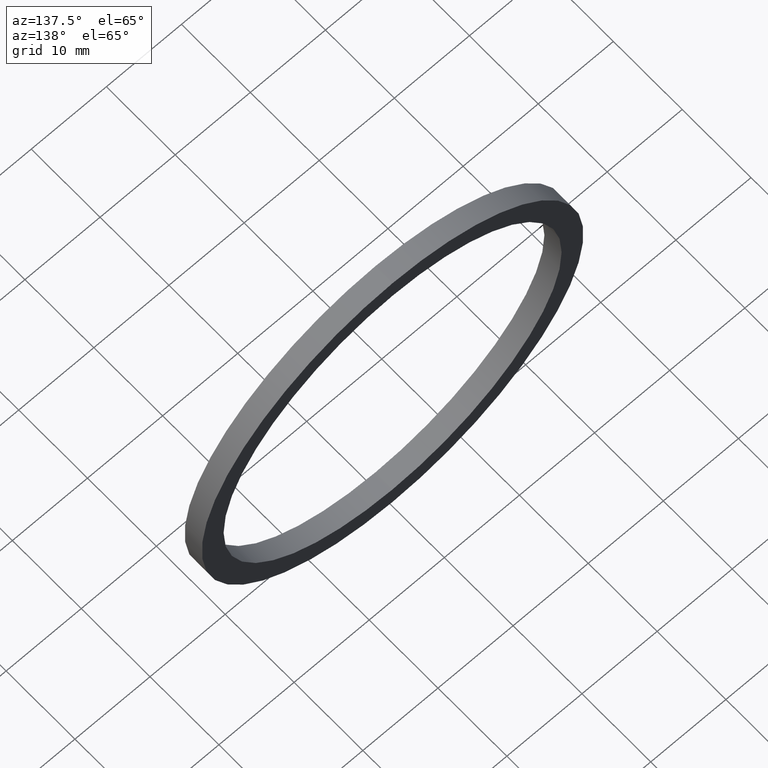
[diagram: clean part render]
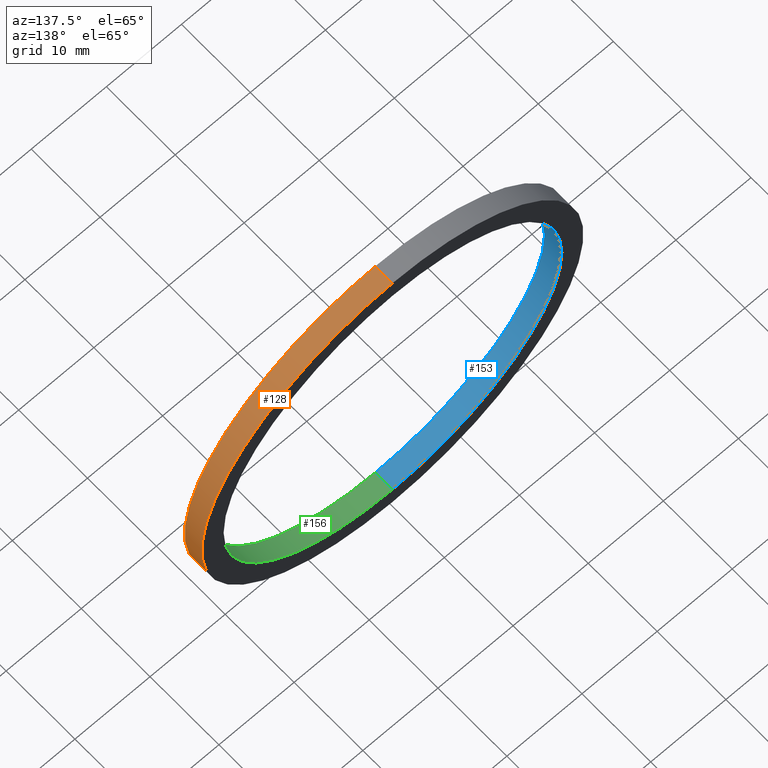
[diagram: same view with three faces highlighted in distinct colors, each labeled with its STEP entity id]
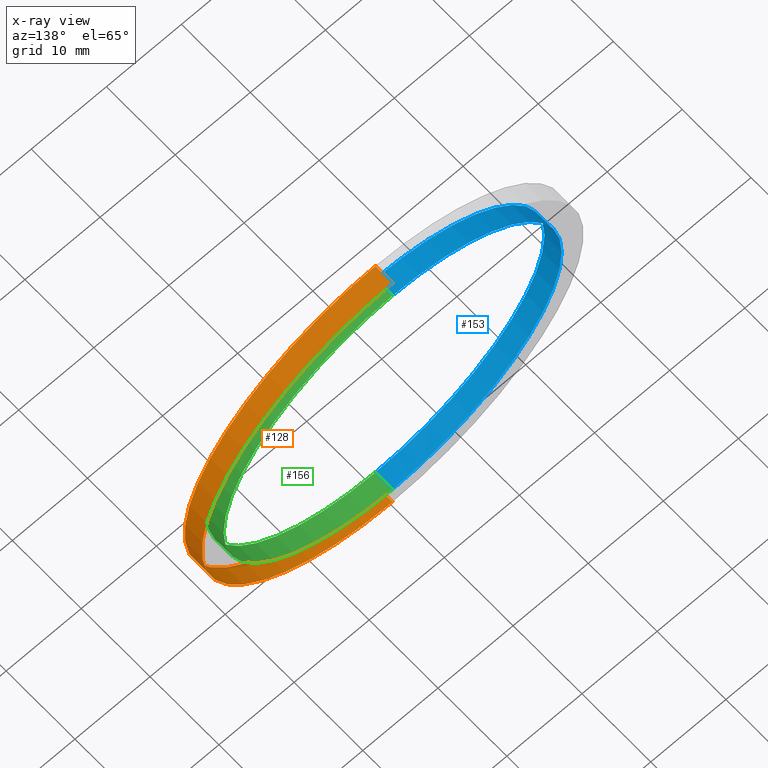
[diagram: x-ray of the same camera — body ghosted, the three highlighted faces saturated]
A machine part, auxiliary view with three faces highlighted in distinct colors.
The next image is the same camera in x-ray (body ghosted, the three faces saturated) — at least one of them is partly hidden behind the body in this view.
Their STEP definitions:

[orange] entity #128 — the highlighted cylindrical surface (partial cylindrical patch) has radius 25.4 mm, axis along (-0, 1, -0).
#4 = CIRCLE ( 'NONE', #59, 25.40000000000000900 ) ;
#14 = DIRECTION ( 'NONE',  ( 0.0000000000000000000, 0.0000000000000000000, 1.000000000000000000 ) ) ;
#19 = VECTOR ( 'NONE', #201, 1000.000000000000000 ) ;
#20 = VERTEX_POINT ( 'NONE', #79 ) ;
#25 = ORIENTED_EDGE ( 'NONE', *, *, #133, .T. ) ;
#26 = CARTESIAN_POINT ( 'NONE',  ( 0.0000000000000000000, 0.0000000000000000000, 0.0000000000000000000 ) ) ;
#39 = VERTEX_POINT ( 'NONE', #158 ) ;
#40 = EDGE_CURVE ( 'NONE', #20, #39, #123, .T. ) ;
#44 = LINE ( 'NONE', #85, #131 ) ;
#50 = ORIENTED_EDGE ( 'NONE', *, *, #160, .F. ) ;
#59 = AXIS2_PLACEMENT_3D ( 'NONE', #87, #102, #14 ) ;
#69 = DIRECTION ( 'NONE',  ( 0.0000000000000000000, 0.0000000000000000000, 1.000000000000000000 ) ) ;
#76 = FACE_OUTER_BOUND ( 'NONE', #149, .T. ) ;
#79 = CARTESIAN_POINT ( 'NONE',  ( 0.0000000000000000000, 0.0000000000000000000, 25.40000000000000900 ) ) ;
#81 = CARTESIAN_POINT ( 'NONE',  ( 0.0000000000000000000, 77.14414226561778800, 0.0000000000000000000 ) ) ;
#85 = CARTESIAN_POINT ( 'NONE',  ( 0.0000000000000000000, 77.14414226561778800, 25.40000000000000900 ) ) ;
#87 = CARTESIAN_POINT ( 'NONE',  ( 0.0000000000000000000, 2.500000000000002200, 0.0000000000000000000 ) ) ;
#101 = DIRECTION ( 'NONE',  ( -0.0000000000000000000, 1.000000000000000000, -0.0000000000000000000 ) ) ;
#102 = DIRECTION ( 'NONE',  ( -0.0000000000000000000, 1.000000000000000000, -0.0000000000000000000 ) ) ;
#106 = AXIS2_PLACEMENT_3D ( 'NONE', #81, #101, #69 ) ;
#107 = CARTESIAN_POINT ( 'NONE',  ( 3.110602869834278000E-015, 2.500000000000002200, -25.40000000000000900 ) ) ;
#122 = DIRECTION ( 'NONE',  ( -0.0000000000000000000, 1.000000000000000000, -0.0000000000000000000 ) ) ;
#123 = CIRCLE ( 'NONE', #199, 25.40000000000000900 ) ;
#128 = ADVANCED_FACE ( 'NONE', ( #76 ), #203, .T. ) ;
#131 = VECTOR ( 'NONE', #122, 1000.000000000000000 ) ;
#133 = EDGE_CURVE ( 'NONE', #39, #233, #235, .T. ) ;
#139 = CARTESIAN_POINT ( 'NONE',  ( 0.0000000000000000000, 2.500000000000002200, 25.40000000000000900 ) ) ;
#149 = EDGE_LOOP ( 'NONE', ( #200, #25, #50, #242 ) ) ;
#158 = CARTESIAN_POINT ( 'NONE',  ( 3.110602869834278000E-015, 0.0000000000000000000, -25.40000000000000900 ) ) ;
#160 = EDGE_CURVE ( 'NONE', #175, #233, #4, .T. ) ;
#175 = VERTEX_POINT ( 'NONE', #139 ) ;
#180 = CARTESIAN_POINT ( 'NONE',  ( 3.110602869834278000E-015, 77.14414226561778800, -25.40000000000000900 ) ) ;
#199 = AXIS2_PLACEMENT_3D ( 'NONE', #26, #240, #219 ) ;
#200 = ORIENTED_EDGE ( 'NONE', *, *, #40, .T. ) ;
#201 = DIRECTION ( 'NONE',  ( -0.0000000000000000000, 1.000000000000000000, -0.0000000000000000000 ) ) ;
#203 = CYLINDRICAL_SURFACE ( 'NONE', #106, 25.40000000000000900 ) ;
#219 = DIRECTION ( 'NONE',  ( 0.0000000000000000000, 0.0000000000000000000, 1.000000000000000000 ) ) ;
#221 = EDGE_CURVE ( 'NONE', #20, #175, #44, .T. ) ;
#233 = VERTEX_POINT ( 'NONE', #107 ) ;
#235 = LINE ( 'NONE', #180, #19 ) ;
#240 = DIRECTION ( 'NONE',  ( -0.0000000000000000000, 1.000000000000000000, -0.0000000000000000000 ) ) ;
#242 = ORIENTED_EDGE ( 'NONE', *, *, #221, .F. ) ;

[blue] entity #153 — the highlighted cylindrical surface (partial cylindrical patch) has radius 22.5 mm, axis along (-0, 1, -0).
#1 = DIRECTION ( 'NONE',  ( -0.0000000000000000000, 1.000000000000000000, -0.0000000000000000000 ) ) ;
#7 = VERTEX_POINT ( 'NONE', #132 ) ;
#28 = EDGE_LOOP ( 'NONE', ( #77, #183, #56, #238 ) ) ;
#31 = CARTESIAN_POINT ( 'NONE',  ( 0.0000000000000000000, 2.500000000000002200, 0.0000000000000000000 ) ) ;
#32 = DIRECTION ( 'NONE',  ( -0.0000000000000000000, 1.000000000000000000, -0.0000000000000000000 ) ) ;
#56 = ORIENTED_EDGE ( 'NONE', *, *, #184, .T. ) ;
#60 = DIRECTION ( 'NONE',  ( -0.0000000000000000000, 1.000000000000000000, -0.0000000000000000000 ) ) ;
#62 = FACE_OUTER_BOUND ( 'NONE', #28, .T. ) ;
#77 = ORIENTED_EDGE ( 'NONE', *, *, #232, .F. ) ;
#82 = EDGE_CURVE ( 'NONE', #155, #7, #192, .T. ) ;
#83 = DIRECTION ( 'NONE',  ( -0.0000000000000000000, 1.000000000000000000, -0.0000000000000000000 ) ) ;
#92 = AXIS2_PLACEMENT_3D ( 'NONE', #31, #1, #205 ) ;
#93 = CIRCLE ( 'NONE', #127, 22.50000000000001100 ) ;
#96 = VECTOR ( 'NONE', #83, 1000.000000000000000 ) ;
#103 = CARTESIAN_POINT ( 'NONE',  ( 2.755455298081546000E-015, 77.14414226561778800, -22.50000000000001100 ) ) ;
#113 = LINE ( 'NONE', #103, #159 ) ;
#115 = CARTESIAN_POINT ( 'NONE',  ( 0.0000000000000000000, 77.14414226561778800, 22.50000000000001100 ) ) ;
#121 = CARTESIAN_POINT ( 'NONE',  ( 0.0000000000000000000, 0.0000000000000000000, 22.50000000000001100 ) ) ;
#127 = AXIS2_PLACEMENT_3D ( 'NONE', #188, #60, #210 ) ;
#132 = CARTESIAN_POINT ( 'NONE',  ( 0.0000000000000000000, 2.500000000000002200, 22.50000000000001100 ) ) ;
#136 = DIRECTION ( 'NONE',  ( 0.0000000000000000000, 0.0000000000000000000, 1.000000000000000000 ) ) ;
#143 = DIRECTION ( 'NONE',  ( -0.0000000000000000000, 1.000000000000000000, -0.0000000000000000000 ) ) ;
#145 = CARTESIAN_POINT ( 'NONE',  ( 2.755455298081546000E-015, 0.0000000000000000000, -22.50000000000001100 ) ) ;
#153 = ADVANCED_FACE ( 'NONE', ( #62 ), #198, .F. ) ;
#155 = VERTEX_POINT ( 'NONE', #121 ) ;
#159 = VECTOR ( 'NONE', #143, 1000.000000000000000 ) ;
#165 = VERTEX_POINT ( 'NONE', #166 ) ;
#166 = CARTESIAN_POINT ( 'NONE',  ( 2.755455298081546000E-015, 2.500000000000002200, -22.50000000000001100 ) ) ;
#173 = EDGE_CURVE ( 'NONE', #223, #165, #113, .T. ) ;
#183 = ORIENTED_EDGE ( 'NONE', *, *, #173, .T. ) ;
#184 = EDGE_CURVE ( 'NONE', #165, #7, #220, .T. ) ;
#188 = CARTESIAN_POINT ( 'NONE',  ( 0.0000000000000000000, 0.0000000000000000000, 0.0000000000000000000 ) ) ;
#190 = AXIS2_PLACEMENT_3D ( 'NONE', #225, #32, #136 ) ;
#192 = LINE ( 'NONE', #115, #96 ) ;
#198 = CYLINDRICAL_SURFACE ( 'NONE', #190, 22.50000000000001100 ) ;
#205 = DIRECTION ( 'NONE',  ( 0.0000000000000000000, 0.0000000000000000000, 1.000000000000000000 ) ) ;
#210 = DIRECTION ( 'NONE',  ( 0.0000000000000000000, 0.0000000000000000000, 1.000000000000000000 ) ) ;
#220 = CIRCLE ( 'NONE', #92, 22.50000000000001100 ) ;
#223 = VERTEX_POINT ( 'NONE', #145 ) ;
#225 = CARTESIAN_POINT ( 'NONE',  ( 0.0000000000000000000, 77.14414226561778800, 0.0000000000000000000 ) ) ;
#232 = EDGE_CURVE ( 'NONE', #223, #155, #93, .T. ) ;
#238 = ORIENTED_EDGE ( 'NONE', *, *, #82, .F. ) ;

[green] entity #156 — the highlighted cylindrical surface (partial cylindrical patch) has radius 22.5 mm, axis along (-0, 1, -0).
#6 = AXIS2_PLACEMENT_3D ( 'NONE', #29, #72, #202 ) ;
#7 = VERTEX_POINT ( 'NONE', #132 ) ;
#27 = CARTESIAN_POINT ( 'NONE',  ( 0.0000000000000000000, 2.500000000000002200, 0.0000000000000000000 ) ) ;
#29 = CARTESIAN_POINT ( 'NONE',  ( 0.0000000000000000000, 77.14414226561778800, 0.0000000000000000000 ) ) ;
#33 = DIRECTION ( 'NONE',  ( 0.0000000000000000000, 0.0000000000000000000, 1.000000000000000000 ) ) ;
#46 = ORIENTED_EDGE ( 'NONE', *, *, #64, .T. ) ;
#64 = EDGE_CURVE ( 'NONE', #7, #165, #111, .T. ) ;
#72 = DIRECTION ( 'NONE',  ( -0.0000000000000000000, 1.000000000000000000, -0.0000000000000000000 ) ) ;
#82 = EDGE_CURVE ( 'NONE', #155, #7, #192, .T. ) ;
#83 = DIRECTION ( 'NONE',  ( -0.0000000000000000000, 1.000000000000000000, -0.0000000000000000000 ) ) ;
#94 = AXIS2_PLACEMENT_3D ( 'NONE', #27, #157, #179 ) ;
#96 = VECTOR ( 'NONE', #83, 1000.000000000000000 ) ;
#103 = CARTESIAN_POINT ( 'NONE',  ( 2.755455298081546000E-015, 77.14414226561778800, -22.50000000000001100 ) ) ;
#111 = CIRCLE ( 'NONE', #94, 22.50000000000001100 ) ;
#113 = LINE ( 'NONE', #103, #159 ) ;
#115 = CARTESIAN_POINT ( 'NONE',  ( 0.0000000000000000000, 77.14414226561778800, 22.50000000000001100 ) ) ;
#120 = CARTESIAN_POINT ( 'NONE',  ( 0.0000000000000000000, 0.0000000000000000000, 0.0000000000000000000 ) ) ;
#121 = CARTESIAN_POINT ( 'NONE',  ( 0.0000000000000000000, 0.0000000000000000000, 22.50000000000001100 ) ) ;
#126 = EDGE_LOOP ( 'NONE', ( #189, #147, #140, #46 ) ) ;
#132 = CARTESIAN_POINT ( 'NONE',  ( 0.0000000000000000000, 2.500000000000002200, 22.50000000000001100 ) ) ;
#138 = CYLINDRICAL_SURFACE ( 'NONE', #6, 22.50000000000001100 ) ;
#140 = ORIENTED_EDGE ( 'NONE', *, *, #82, .T. ) ;
#142 = DIRECTION ( 'NONE',  ( -0.0000000000000000000, 1.000000000000000000, -0.0000000000000000000 ) ) ;
#143 = DIRECTION ( 'NONE',  ( -0.0000000000000000000, 1.000000000000000000, -0.0000000000000000000 ) ) ;
#145 = CARTESIAN_POINT ( 'NONE',  ( 2.755455298081546000E-015, 0.0000000000000000000, -22.50000000000001100 ) ) ;
#147 = ORIENTED_EDGE ( 'NONE', *, *, #211, .F. ) ;
#155 = VERTEX_POINT ( 'NONE', #121 ) ;
#156 = ADVANCED_FACE ( 'NONE', ( #212 ), #138, .F. ) ;
#157 = DIRECTION ( 'NONE',  ( -0.0000000000000000000, 1.000000000000000000, -0.0000000000000000000 ) ) ;
#159 = VECTOR ( 'NONE', #143, 1000.000000000000000 ) ;
#165 = VERTEX_POINT ( 'NONE', #166 ) ;
#166 = CARTESIAN_POINT ( 'NONE',  ( 2.755455298081546000E-015, 2.500000000000002200, -22.50000000000001100 ) ) ;
#173 = EDGE_CURVE ( 'NONE', #223, #165, #113, .T. ) ;
#179 = DIRECTION ( 'NONE',  ( 0.0000000000000000000, 0.0000000000000000000, 1.000000000000000000 ) ) ;
#189 = ORIENTED_EDGE ( 'NONE', *, *, #173, .F. ) ;
#192 = LINE ( 'NONE', #115, #96 ) ;
#194 = AXIS2_PLACEMENT_3D ( 'NONE', #120, #142, #33 ) ;
#202 = DIRECTION ( 'NONE',  ( 0.0000000000000000000, 0.0000000000000000000, 1.000000000000000000 ) ) ;
#211 = EDGE_CURVE ( 'NONE', #155, #223, #241, .T. ) ;
#212 = FACE_OUTER_BOUND ( 'NONE', #126, .T. ) ;
#223 = VERTEX_POINT ( 'NONE', #145 ) ;
#241 = CIRCLE ( 'NONE', #194, 22.50000000000001100 ) ;